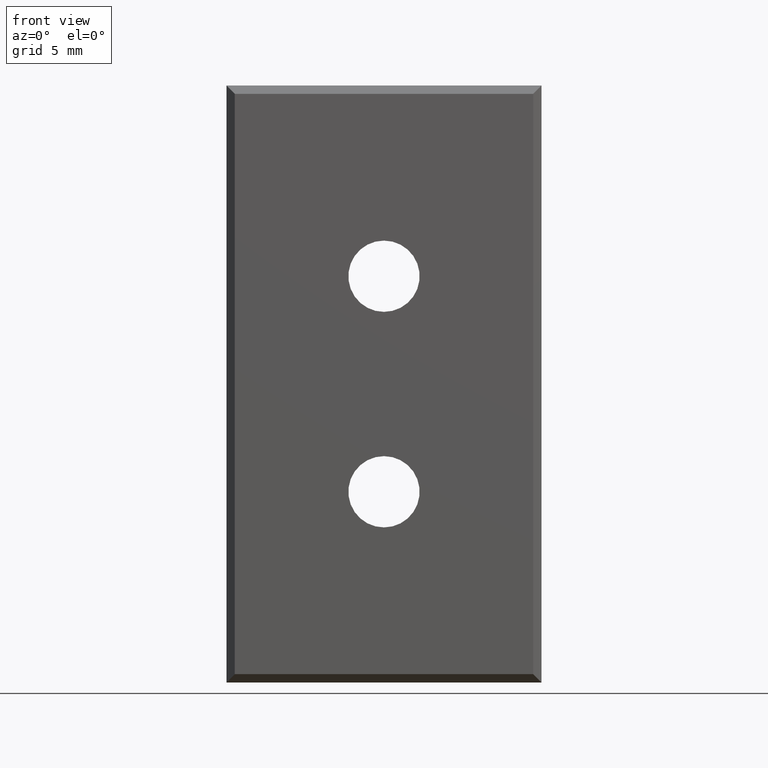
[diagram: clean part render]
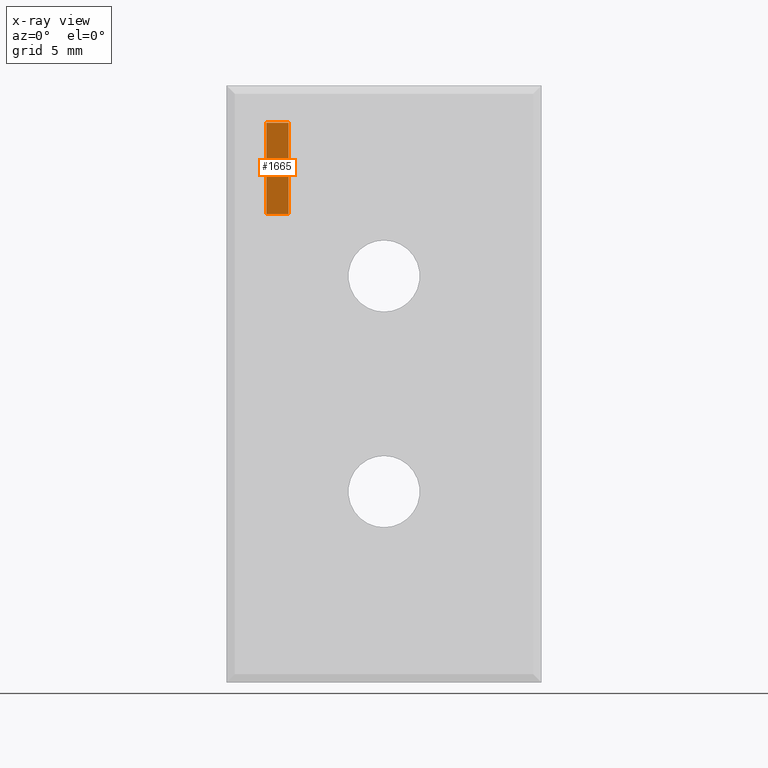
[diagram: x-ray — body ghosted, one internal face saturated and labeled with its STEP entity id]
A machine part, front view, then the same camera in x-ray: the body is ghosted and one INTERNAL B-rep face — a face not visible from any outside direction — is saturated and labeled: STEP entity #1665.
In plain terms, the highlighted planar face has unit normal (0, 1, 0).
Its self-contained STEP definition (entity closure, byte-faithful):
#247 = LINE ( 'NONE', #255, #5588 ) ;
#253 = CARTESIAN_POINT ( 'NONE',  ( 6517.557784387889100, 10.74967895952128000, -2.252809090856698700 ) ) ;
#255 = CARTESIAN_POINT ( 'NONE',  ( 6517.557784387889100, 10.74967895952128000, -7.753451171836289300 ) ) ;
#258 = DIRECTION ( 'NONE',  ( 1.000000000000000000, 0.0000000000000000000, -0.0000000000000000000 ) ) ;
#273 = LINE ( 'NONE', #253, #5594 ) ;
#284 = DIRECTION ( 'NONE',  ( 1.000000000000000000, -0.0000000000000000000, -5.921768780153806200E-013 ) ) ;
#1196 = EDGE_CURVE ( 'NONE', #6625, #6651, #5449, .T. ) ;
#1203 = EDGE_CURVE ( 'NONE', #6664, #6663, #5443, .T. ) ;
#1251 = EDGE_CURVE ( 'NONE', #6664, #6625, #273, .T. ) ;
#1254 = EDGE_CURVE ( 'NONE', #6663, #6651, #247, .T. ) ;
#1665 = ADVANCED_FACE ( 'NONE', ( #3540 ), #3539, .F. ) ;
#2563 = EDGE_LOOP ( 'NONE', ( #6810, #6861, #6813, #6818 ) ) ;
#3539 = PLANE ( 'NONE',  #4274 ) ;
#3540 = FACE_OUTER_BOUND ( 'NONE', #2563, .T. ) ;
#3604 = CARTESIAN_POINT ( 'NONE',  ( 6517.557784387889100, 10.74967895952128000, -7.753451171836289300 ) ) ;
#3605 = DIRECTION ( 'NONE',  ( 0.0000000000000000000, 1.000000000000000000, 0.0000000000000000000 ) ) ;
#3611 = DIRECTION ( 'NONE',  ( 0.0000000000000000000, -0.0000000000000000000, 1.000000000000000000 ) ) ;
#4274 = AXIS2_PLACEMENT_3D ( 'NONE', #3604, #3605, #3611 ) ;
#5443 = LINE ( 'NONE', #5488, #6248 ) ;
#5449 = LINE ( 'NONE', #5477, #6240 ) ;
#5462 = DIRECTION ( 'NONE',  ( -0.0000000000000000000, 0.0000000000000000000, -1.000000000000000000 ) ) ;
#5477 = CARTESIAN_POINT ( 'NONE',  ( 6481.507784387871700, 10.74967895952128000, -7.753451171836289300 ) ) ;
#5488 = CARTESIAN_POINT ( 'NONE',  ( 6480.157784387890400, 10.74967895952128000, -5.003130131335420400 ) ) ;
#5513 = DIRECTION ( 'NONE',  ( -5.921768780153806200E-013, -0.0000000000000000000, -1.000000000000000000 ) ) ;
#5588 = VECTOR ( 'NONE', #284, 1000.000000000000000 ) ;
#5594 = VECTOR ( 'NONE', #258, 1000.000000000000000 ) ;
#6240 = VECTOR ( 'NONE', #5462, 1000.000000000000000 ) ;
#6248 = VECTOR ( 'NONE', #5513, 1000.000000000000000 ) ;
#6625 = VERTEX_POINT ( 'NONE', #7286 ) ;
#6651 = VERTEX_POINT ( 'NONE', #7257 ) ;
#6663 = VERTEX_POINT ( 'NONE', #7326 ) ;
#6664 = VERTEX_POINT ( 'NONE', #7320 ) ;
#6810 = ORIENTED_EDGE ( 'NONE', *, *, #1251, .F. ) ;
#6813 = ORIENTED_EDGE ( 'NONE', *, *, #1254, .T. ) ;
#6818 = ORIENTED_EDGE ( 'NONE', *, *, #1196, .F. ) ;
#6861 = ORIENTED_EDGE ( 'NONE', *, *, #1203, .T. ) ;
#7257 = CARTESIAN_POINT ( 'NONE',  ( 6481.507784387871700, 10.74967895952128000, -7.753451171814941000 ) ) ;
#7286 = CARTESIAN_POINT ( 'NONE',  ( 6481.507784387871700, 10.74967895952128000, -2.252809090856965100 ) ) ;
#7320 = CARTESIAN_POINT ( 'NONE',  ( 6480.157784387892200, 10.74967895952128000, -2.252809090856700900 ) ) ;
#7326 = CARTESIAN_POINT ( 'NONE',  ( 6480.157784387889500, 10.74967895952128000, -7.753451171814141700 ) ) ;